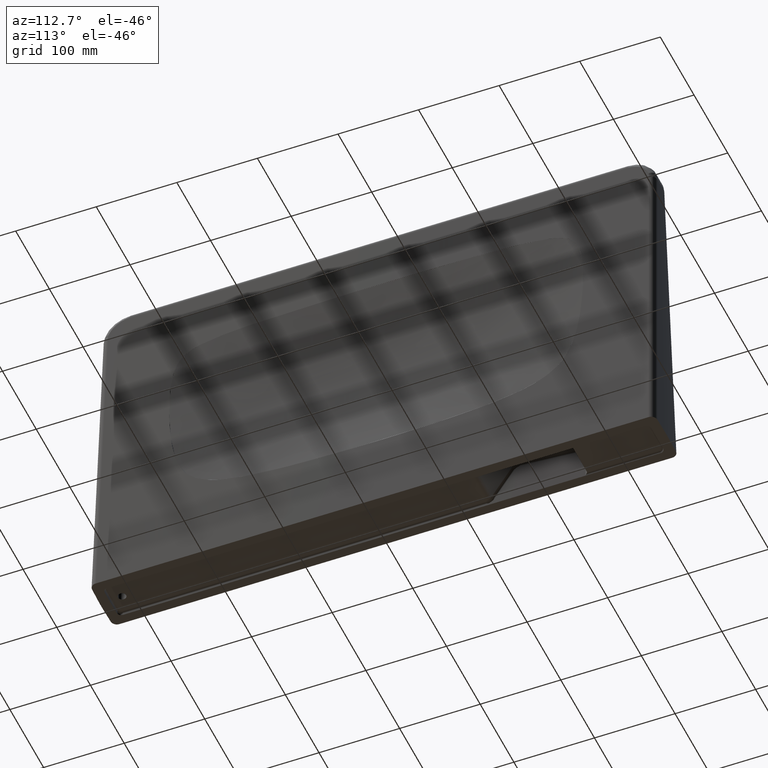
[diagram: clean part render]
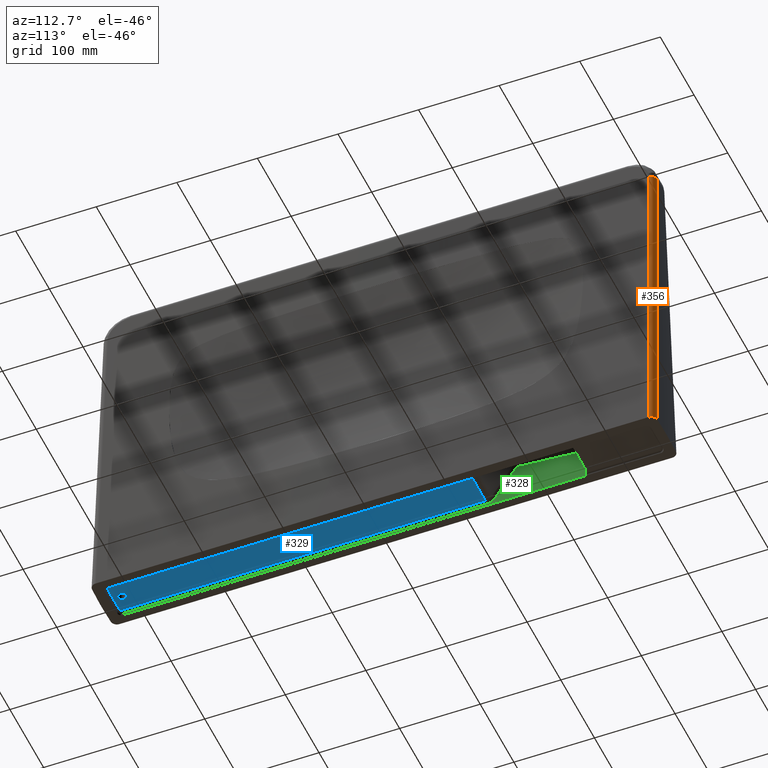
[diagram: same view with three faces highlighted in distinct colors, each labeled with its STEP entity id]
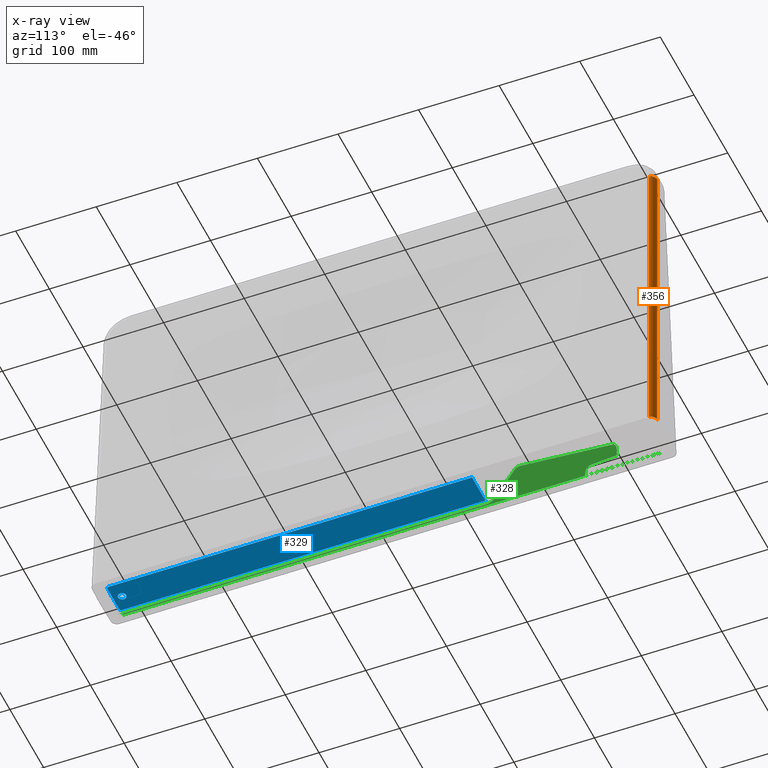
[diagram: x-ray of the same camera — body ghosted, the three highlighted faces saturated]
A machine part, auxiliary view with three faces highlighted in distinct colors.
The next image is the same camera in x-ray (body ghosted, the three faces saturated) — at least one of them is partly hidden behind the body in this view.
Their STEP definitions:

[orange] entity #356 — the highlighted cylindrical surface (edge-blend (fillet) strip) has radius 7.5 mm, axis along (0.0436, 0.0176, -0.9989).
#152=CYLINDRICAL_SURFACE('',#2080,7.5);
#254=CIRCLE('',#2079,7.5);
#356=ADVANCED_FACE('',(#500),#152,.T.);
#500=FACE_OUTER_BOUND('',#623,.T.);
#623=EDGE_LOOP('',(#964,#965,#966,#967));
#735=ELLIPSE('',#2040,7.50830832568396,7.5);
#964=ORIENTED_EDGE('',*,*,#1564,.F.);
#965=ORIENTED_EDGE('',*,*,#1585,.F.);
#966=ORIENTED_EDGE('',*,*,#1619,.F.);
#967=ORIENTED_EDGE('',*,*,#1590,.F.);
#1391=VERTEX_POINT('',#2987);
#1392=VERTEX_POINT('',#2989);
#1409=VERTEX_POINT('',#3291);
#1413=VERTEX_POINT('',#3405);
#1564=EDGE_CURVE('',#1391,#1392,#735,.T.);
#1585=EDGE_CURVE('',#1409,#1391,#1822,.T.);
#1590=EDGE_CURVE('',#1392,#1413,#1825,.T.);
#1619=EDGE_CURVE('',#1413,#1409,#254,.T.);
#1822=LINE('',#3292,#1943);
#1825=LINE('',#3404,#1946);
#1943=VECTOR('',#2384,1.);
#1946=VECTOR('',#2391,1.);
#2040=AXIS2_PLACEMENT_3D('',#2988,#2356,#2357);
#2079=AXIS2_PLACEMENT_3D('',#3752,#2451,#2452);
#2080=AXIS2_PLACEMENT_3D('',#3753,#2453,#2454);
#2356=DIRECTION('',(0.,0.,-1.));
#2357=DIRECTION('',(0.927324525944989,0.374258231146493,0.));
#2384=DIRECTION('',(0.0436126298508142,0.0176015895697131,-0.998893449053559));
#2391=DIRECTION('',(-0.0436126298508141,-0.0176015895697131,0.998893449053559));
#2451=DIRECTION('',(-0.0436126298508164,-0.0176015895697103,0.998893449053559));
#2452=DIRECTION('',(0.999048221581857,0.,0.0436193873653383));
#2453=DIRECTION('',(0.0436126298508141,0.0176015895697131,-0.998893449053559));
#2454=DIRECTION('',(-0.999048221581857,0.,-0.043619387365336));
#2987=CARTESIAN_POINT('',(128.621407050275,57.1718989592816,-25.));
#2988=CARTESIAN_POINT('',(128.418938526512,49.6733100253362,-25.));
#2989=CARTESIAN_POINT('',(135.926083665237,49.6790746833766,-25.));
#3291=CARTESIAN_POINT('',(110.466381460668,49.8447253825216,390.81844963013));
#3292=CARTESIAN_POINT('',(128.635154132296,57.1774471341187,-25.3148599435889));
#3404=CARTESIAN_POINT('',(117.785024102982,42.3575376454406,390.498575014014));
#3405=CARTESIAN_POINT('',(117.762916010223,42.3486150563591,391.004933587302));
#3752=CARTESIAN_POINT('',(110.270054348359,42.3486150563591,390.677788182062));
#3753=CARTESIAN_POINT('',(127.340949789162,49.2382453346602,-0.309998695883416));

[blue] entity #329 — the highlighted planar face has unit normal (0, 0, -1).
#193=FACE_BOUND('',#592,.T.);
#194=FACE_BOUND('',#593,.T.);
#215=B_SPLINE_CURVE_WITH_KNOTS('',3,(#2913,#2914,#2915,#2916,#2917,#2918,
#2919,#2920,#2921,#2922),.UNSPECIFIED.,.F.,.F.,(4,3,3,4),(0.,0.345408990198895,
0.672656426231716,1.),.UNSPECIFIED.);
#239=CIRCLE('',#2021,1.92832982812004);
#240=CIRCLE('',#2022,1.92832982812004);
#241=CIRCLE('',#2023,5.);
#329=ADVANCED_FACE('',(#193,#194),#449,.T.);
#449=PLANE('',#2024);
#592=EDGE_LOOP('',(#815,#816,#817,#818,#819,#820,#821,#822));
#593=EDGE_LOOP('',(#823));
#815=ORIENTED_EDGE('',*,*,#1525,.T.);
#816=ORIENTED_EDGE('',*,*,#1526,.T.);
#817=ORIENTED_EDGE('',*,*,#1527,.T.);
#818=ORIENTED_EDGE('',*,*,#1528,.T.);
#819=ORIENTED_EDGE('',*,*,#1529,.T.);
#820=ORIENTED_EDGE('',*,*,#1530,.T.);
#821=ORIENTED_EDGE('',*,*,#1531,.T.);
#822=ORIENTED_EDGE('',*,*,#1532,.T.);
#823=ORIENTED_EDGE('',*,*,#1533,.F.);
#1357=VERTEX_POINT('',#2901);
#1358=VERTEX_POINT('',#2902);
#1359=VERTEX_POINT('',#2904);
#1360=VERTEX_POINT('',#2906);
#1361=VERTEX_POINT('',#2908);
#1362=VERTEX_POINT('',#2910);
#1363=VERTEX_POINT('',#2912);
#1364=VERTEX_POINT('',#2923);
#1365=VERTEX_POINT('',#2926);
#1525=EDGE_CURVE('',#1357,#1358,#239,.T.);
#1526=EDGE_CURVE('',#1358,#1359,#1788,.T.);
#1527=EDGE_CURVE('',#1359,#1360,#1789,.T.);
#1528=EDGE_CURVE('',#1360,#1361,#1790,.T.);
#1529=EDGE_CURVE('',#1361,#1362,#240,.T.);
#1530=EDGE_CURVE('',#1362,#1363,#1791,.T.);
#1531=EDGE_CURVE('',#1363,#1364,#215,.T.);
#1532=EDGE_CURVE('',#1364,#1357,#1792,.T.);
#1533=EDGE_CURVE('',#1365,#1365,#241,.T.);
#1788=LINE('',#2903,#1909);
#1789=LINE('',#2905,#1910);
#1790=LINE('',#2907,#1911);
#1791=LINE('',#2911,#1912);
#1792=LINE('',#2924,#1913);
#1909=VECTOR('',#2296,1.);
#1910=VECTOR('',#2297,1.);
#1911=VECTOR('',#2298,1.);
#1912=VECTOR('',#2301,1.);
#1913=VECTOR('',#2302,1.);
#2021=AXIS2_PLACEMENT_3D('',#2900,#2294,#2295);
#2022=AXIS2_PLACEMENT_3D('',#2909,#2299,#2300);
#2023=AXIS2_PLACEMENT_3D('',#2925,#2303,#2304);
#2024=AXIS2_PLACEMENT_3D('',#2927,#2305,#2306);
#2294=DIRECTION('',(0.,0.,-1.));
#2295=DIRECTION('',(-0.999999999999999,0.,0.));
#2296=DIRECTION('',(1.09095572380826E-016,1.,0.));
#2297=DIRECTION('',(1.,9.25220431812028E-016,0.));
#2298=DIRECTION('',(1.03900545124596E-016,-1.,0.));
#2299=DIRECTION('',(0.,0.,-1.));
#2300=DIRECTION('',(-0.999999999999999,0.,0.));
#2301=DIRECTION('',(-0.999657204378326,-0.0261815533250088,0.));
#2302=DIRECTION('',(-0.999657204378326,0.0261815533250088,0.));
#2303=DIRECTION('',(0.,0.,-1.));
#2304=DIRECTION('',(-1.,0.,0.));
#2305=DIRECTION('',(0.,0.,-1.));
#2306=DIRECTION('',(-1.,0.,0.));
#2900=CARTESIAN_POINT('',(82.8239163347625,-627.419995106195,-20.));
#2901=CARTESIAN_POINT('',(82.7734296645394,-629.347663911292,-20.));
#2902=CARTESIAN_POINT('',(80.8955865066425,-627.419995106195,-20.));
#2903=CARTESIAN_POINT('',(80.8955865066425,-175.998680145654,-20.));
#2904=CARTESIAN_POINT('',(80.8955865066426,-175.998680145653,-20.));
#2905=CARTESIAN_POINT('',(123.751479817779,-175.998680145653,-20.));
#2906=CARTESIAN_POINT('',(120.854413493357,-175.998680145653,-20.));
#2907=CARTESIAN_POINT('',(120.854413493357,-627.419995106194,-20.));
#2908=CARTESIAN_POINT('',(120.854413493357,-627.419995106194,-20.));
#2909=CARTESIAN_POINT('',(118.926083665237,-627.419995106194,-20.));
#2910=CARTESIAN_POINT('',(118.976570335461,-629.347663911292,-20.));
#2911=CARTESIAN_POINT('',(109.642332171454,-629.592132568317,-20.));
#2912=CARTESIAN_POINT('',(109.642332171207,-629.592132568323,-20.));
#2913=CARTESIAN_POINT('',(109.642332171207,-629.592132568323,-20.));
#2914=CARTESIAN_POINT('',(107.623947965802,-629.644995123246,-20.));
#2915=CARTESIAN_POINT('',(105.605002837817,-629.679592477808,-20.));
#2916=CARTESIAN_POINT('',(103.585992627648,-629.695933272565,-20.));
#2917=CARTESIAN_POINT('',(101.673133626775,-629.711414935895,-20.));
#2918=CARTESIAN_POINT('',(99.7600718219683,-629.710510451726,-20.));
#2919=CARTESIAN_POINT('',(97.8472283191812,-629.693219617094,-20.));
#2920=CARTESIAN_POINT('',(95.9338229523784,-629.675923703584,-20.));
#2921=CARTESIAN_POINT('',(94.0204954317615,-629.642230539734,-20.));
#2922=CARTESIAN_POINT('',(92.1076678285537,-629.592132568317,-20.));
#2923=CARTESIAN_POINT('',(92.1076678285537,-629.592132568317,-20.));
#2924=CARTESIAN_POINT('',(82.7734296645394,-629.347663911292,-20.));
#2925=CARTESIAN_POINT('',(100.875,-618.53764158282,-20.));
#2926=CARTESIAN_POINT('',(95.875,-618.53764158282,-20.));
#2927=CARTESIAN_POINT('',(100.875000000111,-632.778573762134,-20.));

[green] entity #328 — the highlighted planar face has unit normal (-0.9994, 0, 0.0349).
#328=ADVANCED_FACE('',(#476),#448,.F.);
#448=PLANE('',#2020);
#476=FACE_OUTER_BOUND('',#591,.T.);
#591=EDGE_LOOP('',(#801,#802,#803,#804,#805,#806,#807,#808,#809,#810,#811,
#812,#813,#814));
#720=ELLIPSE('',#2016,8.00487635439057,8.);
#721=ELLIPSE('',#2017,7.00426681009175,7.);
#722=ELLIPSE('',#2018,7.00426681009175,7.);
#723=ELLIPSE('',#2019,13.0079240758847,13.);
#801=ORIENTED_EDGE('',*,*,#1510,.F.);
#802=ORIENTED_EDGE('',*,*,#1512,.T.);
#803=ORIENTED_EDGE('',*,*,#1513,.T.);
#804=ORIENTED_EDGE('',*,*,#1514,.T.);
#805=ORIENTED_EDGE('',*,*,#1515,.T.);
#806=ORIENTED_EDGE('',*,*,#1516,.T.);
#807=ORIENTED_EDGE('',*,*,#1517,.T.);
#808=ORIENTED_EDGE('',*,*,#1518,.T.);
#809=ORIENTED_EDGE('',*,*,#1519,.T.);
#810=ORIENTED_EDGE('',*,*,#1520,.T.);
#811=ORIENTED_EDGE('',*,*,#1521,.T.);
#812=ORIENTED_EDGE('',*,*,#1522,.T.);
#813=ORIENTED_EDGE('',*,*,#1523,.T.);
#814=ORIENTED_EDGE('',*,*,#1524,.F.);
#1343=VERTEX_POINT('',#2869);
#1344=VERTEX_POINT('',#2871);
#1345=VERTEX_POINT('',#2875);
#1346=VERTEX_POINT('',#2877);
#1347=VERTEX_POINT('',#2879);
#1348=VERTEX_POINT('',#2881);
#1349=VERTEX_POINT('',#2883);
#1350=VERTEX_POINT('',#2885);
#1351=VERTEX_POINT('',#2887);
#1352=VERTEX_POINT('',#2889);
#1353=VERTEX_POINT('',#2891);
#1354=VERTEX_POINT('',#2893);
#1355=VERTEX_POINT('',#2895);
#1356=VERTEX_POINT('',#2897);
#1510=EDGE_CURVE('',#1343,#1344,#1778,.T.);
#1512=EDGE_CURVE('',#1343,#1345,#1779,.T.);
#1513=EDGE_CURVE('',#1345,#1346,#1780,.T.);
#1514=EDGE_CURVE('',#1346,#1347,#720,.T.);
#1515=EDGE_CURVE('',#1347,#1348,#1781,.T.);
#1516=EDGE_CURVE('',#1348,#1349,#1782,.T.);
#1517=EDGE_CURVE('',#1349,#1350,#721,.T.);
#1518=EDGE_CURVE('',#1350,#1351,#1783,.T.);
#1519=EDGE_CURVE('',#1351,#1352,#722,.T.);
#1520=EDGE_CURVE('',#1352,#1353,#1784,.T.);
#1521=EDGE_CURVE('',#1353,#1354,#723,.T.);
#1522=EDGE_CURVE('',#1354,#1355,#1785,.T.);
#1523=EDGE_CURVE('',#1355,#1356,#1786,.T.);
#1524=EDGE_CURVE('',#1344,#1356,#1787,.T.);
#1778=LINE('',#2870,#1899);
#1779=LINE('',#2874,#1900);
#1780=LINE('',#2876,#1901);
#1781=LINE('',#2880,#1902);
#1782=LINE('',#2882,#1903);
#1783=LINE('',#2886,#1904);
#1784=LINE('',#2890,#1905);
#1785=LINE('',#2894,#1906);
#1786=LINE('',#2896,#1907);
#1787=LINE('',#2898,#1908);
#1899=VECTOR('',#2270,1.);
#1900=VECTOR('',#2275,1.);
#1901=VECTOR('',#2276,1.);
#1902=VECTOR('',#2279,1.);
#1903=VECTOR('',#2280,1.);
#1904=VECTOR('',#2283,1.);
#1905=VECTOR('',#2286,1.);
#1906=VECTOR('',#2289,1.);
#1907=VECTOR('',#2290,1.);
#1908=VECTOR('',#2291,1.);
#2016=AXIS2_PLACEMENT_3D('',#2878,#2277,#2278);
#2017=AXIS2_PLACEMENT_3D('',#2884,#2281,#2282);
#2018=AXIS2_PLACEMENT_3D('',#2888,#2284,#2285);
#2019=AXIS2_PLACEMENT_3D('',#2892,#2287,#2288);
#2020=AXIS2_PLACEMENT_3D('',#2899,#2292,#2293);
#2270=DIRECTION('',(-0.0348994967025009,3.80738056856209E-018,-0.999390827019096));
#2275=DIRECTION('',(-1.09095572380826E-016,-1.,4.3938394750225E-032));
#2276=DIRECTION('',(0.0347668544109871,0.0871030527588013,0.995592448763279));
#2277=DIRECTION('',(-0.999390827019096,1.09029114305795E-016,0.0348994967025009));
#2278=DIRECTION('',(0.0348994967025009,1.3140117360404E-014,0.999390827019096));
#2279=DIRECTION('',(0.00304353150603117,0.996190084163462,0.0871553390812391));
#2280=DIRECTION('',(0.0348782627423746,-0.0348782627423746,0.998782765958718));
#2281=DIRECTION('',(0.999390827019096,-1.09029114305795E-016,-0.0348994967025009));
#2282=DIRECTION('',(0.0348994967025009,1.3966262966111E-014,0.999390827019096));
#2283=DIRECTION('',(0.00304353150603095,-0.996190084163462,0.0871553390812391));
#2284=DIRECTION('',(0.999390827019096,-1.09029114305795E-016,-0.0348994967025009));
#2285=DIRECTION('',(0.0348994967025009,2.0504671078787E-014,0.999390827019096));
#2286=DIRECTION('',(-0.0285937234159421,-0.573341910064655,-0.818817106040553));
#2287=DIRECTION('',(-0.999390827019096,1.09029114305795E-016,0.0348994967025009));
#2288=DIRECTION('',(-0.0348994967025009,-2.96331817430807E-014,-0.999390827019096));
#2289=DIRECTION('',(-1.09095572380826E-016,-1.,0.));
#2290=DIRECTION('',(-0.0348994967025009,0.,-0.999390827019096));
#2291=DIRECTION('',(-1.09095572380826E-016,-1.,0.));
#2292=DIRECTION('',(-0.999390827019096,1.09029114305795E-016,0.0348994967025009));
#2293=DIRECTION('',(0.0348994967025009,0.,0.999390827019096));
#2869=CARTESIAN_POINT('',(77.8275724866018,40.4199951061946,-24.8953015098925));
#2870=CARTESIAN_POINT('',(77.8239163347626,40.4199951061946,-25.));
#2871=CARTESIAN_POINT('',(77.8239163347626,40.4199951061946,-25.));
#2874=CARTESIAN_POINT('',(77.8275724866018,40.4199951061946,-24.8953015098925));
#2875=CARTESIAN_POINT('',(77.8275724866018,-53.5948508198312,-24.8953015098925));
#2876=CARTESIAN_POINT('',(78.1086491521567,-52.8906560905731,-16.8463189231441));
#2877=CARTESIAN_POINT('',(78.0770339153181,-52.9698632460375,-17.7516608528543));
#2878=CARTESIAN_POINT('',(78.0526855504991,-45.0003056613035,-18.4489067948355));
#2879=CARTESIAN_POINT('',(78.3309886338668,-45.6975516032848,-10.4793492101016));
#2880=CARTESIAN_POINT('',(78.4281002518289,-13.9115718362853,-7.69843632142473));
#2881=CARTESIAN_POINT('',(78.4285964049997,-13.749174020459,-7.68422835355856));
#2882=CARTESIAN_POINT('',(77.7587554974252,-13.0793331128845,-26.8659622421213));
#2883=CARTESIAN_POINT('',(78.8707951260852,-14.1913727415445,4.97868622482702));
#2884=CARTESIAN_POINT('',(78.8622641051271,-21.1871085306782,4.73438974790951));
#2885=CARTESIAN_POINT('',(79.1057793030739,-20.5770183314446,11.7077526345517));
#2886=CARTESIAN_POINT('',(79.4516485467365,-133.784819949754,21.6121518988456));
#2887=CARTESIAN_POINT('',(79.451675386198,-133.793604877857,21.6129204804644));
#2888=CARTESIAN_POINT('',(79.2081601882513,-134.40369507709,14.6395575938222));
#2889=CARTESIAN_POINT('',(79.3483683018893,-140.137759387113,18.6545926482795));
#2890=CARTESIAN_POINT('',(81.2850958431349,-101.303814901469,74.1152130593856));
#2891=CARTESIAN_POINT('',(78.0909975322217,-165.349703569897,-17.3517951824561));
#2892=CARTESIAN_POINT('',(78.351384028978,-175.998680145654,-9.89530150989251));
#2893=CARTESIAN_POINT('',(77.8974140255852,-175.998680145653,-22.8953015098925));
#2894=CARTESIAN_POINT('',(77.8974140255852,-627.419995106194,-22.8953015098925));
#2895=CARTESIAN_POINT('',(77.8974140255852,-627.419995106195,-22.8953015098925));
#2896=CARTESIAN_POINT('',(77.8239163347625,-627.419995106195,-25.));
#2897=CARTESIAN_POINT('',(77.8239163347625,-627.419995106195,-25.));
#2898=CARTESIAN_POINT('',(77.8239163347626,40.4199951061946,-25.));
#2899=CARTESIAN_POINT('',(77.8239163347626,40.4199951061946,-25.));